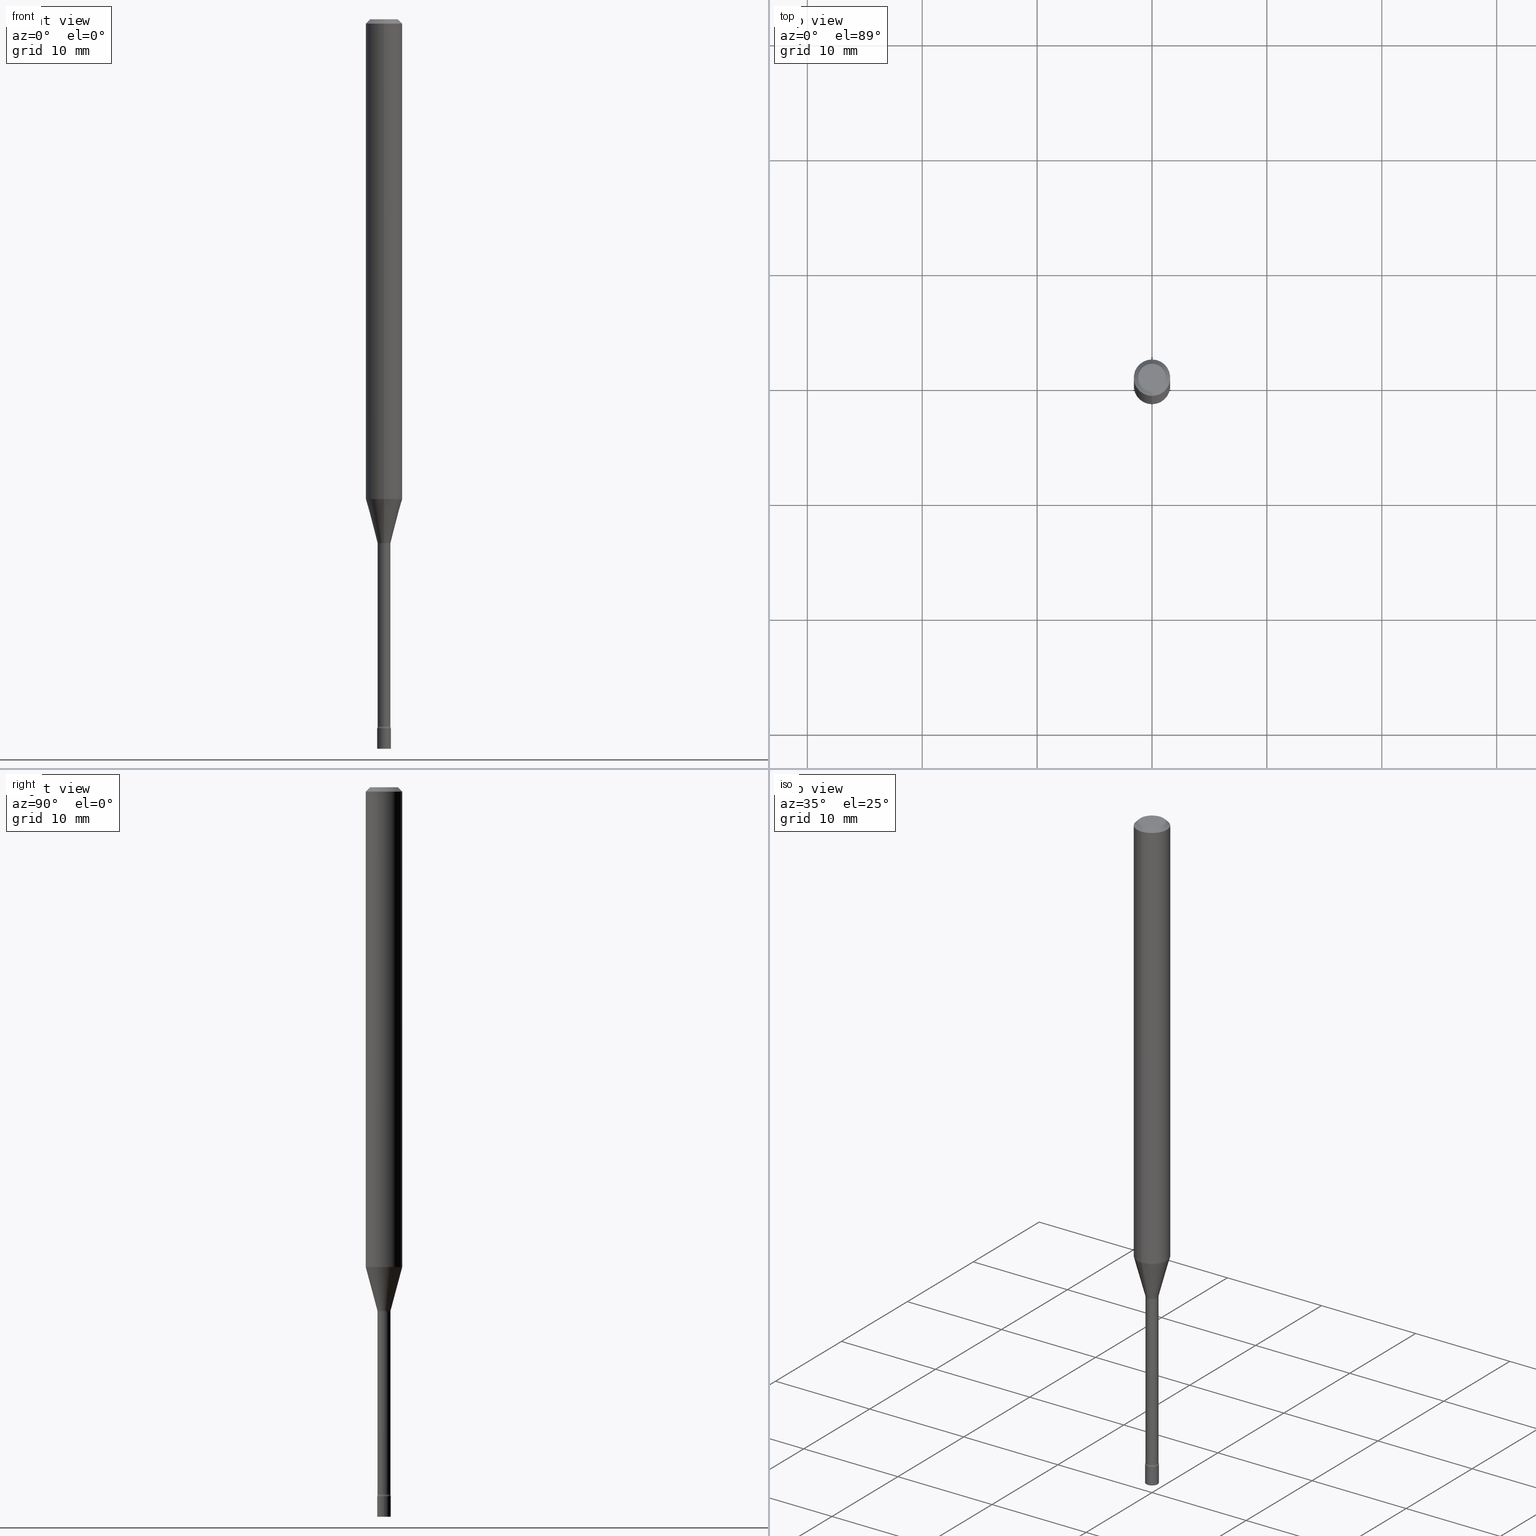
[diagram: canonical four-view strip — front | top / right | iso, engineering-drawing reading convention]
A machine part, canonical four-view strip (front | top / right | iso — engineering-drawing reading convention). The complete STEP part file that produces these views, byte-faithful:
ISO-10303-21;
HEADER;
FILE_DESCRIPTION (( 'STEP AP203' ),
    '1' );
FILE_NAME ('03625.STEP',
    '2024-03-08T22:11:30',
    ( '' ),
    ( '' ),
    'SwSTEP 2.0',
    'SolidWorks 2023',
    '' );
FILE_SCHEMA (( 'CONFIG_CONTROL_DESIGN' ));
ENDSEC;

DATA;
#1 = LINE ( 'NONE', #147, #111 ) ;
#2 = PERSON ( 'UNSPECIFIED', 'UNSPECIFIED', 'UNSPECIFIED', ('UNSPECIFIED'), ('UNSPECIFIED'), ('UNSPECIFIED') ) ;
#3 = EDGE_CURVE ( 'NONE', #136, #480, #63, .T. ) ;
#4 = CIRCLE ( 'NONE', #86, 0.06250000000000000000 ) ;
#5 = DATE_AND_TIME ( #356, #97 ) ;
#6 = EDGE_CURVE ( 'NONE', #100, #479, #79, .T. ) ;
#7 = CARTESIAN_POINT ( 'NONE',  ( 4.384932830333767000E-29, -6.260576145416959100E-15, -1.793092501787273196 ) ) ;
#8 = DATE_TIME_ROLE ( 'classification_date' ) ;
#9 = LOCAL_TIME ( 17, 11, 30.00000000000000000, #255 ) ;
#10 = ORIENTED_EDGE ( 'NONE', *, *, #73, .T. ) ;
#11 = DIRECTION ( 'NONE',  ( -2.445468806185136597E-29, 3.491481338843145583E-15, 1.000000000000000000 ) ) ;
#12 = EDGE_LOOP ( 'NONE', ( #113, #280, #103, #238 ) ) ;
#13 = CC_DESIGN_APPROVAL ( #270, ( #475 ) ) ;
#14 = DIRECTION ( 'NONE',  ( -2.445458238190760089E-29, 3.491496472812585621E-15, 1.000000000000000000 ) ) ;
#15 = DIRECTION ( 'NONE',  ( -6.982962677686265922E-15, -1.000000000000000000, 3.491496472812585621E-15 ) ) ;
#16 = EDGE_LOOP ( 'NONE', ( #123, #315, #207, #518 ) ) ;
#17 = DIRECTION ( 'NONE',  ( 1.000000000000000000, -7.105427357601001070E-15, 4.926315693879754937E-29 ) ) ;
#18 = CARTESIAN_POINT ( 'NONE',  ( 0.02350000000000000352, -1.640996229256272766E-16, 1.145901542312045115E-30 ) ) ;
#19 = DATE_AND_TIME ( #409, #200 ) ;
#20 = LINE ( 'NONE', #263, #37 ) ;
#21 = DIRECTION ( 'NONE',  ( 1.000000000000000000, -6.982962677686228056E-15, 0.000000000000000000 ) ) ;
#22 = CARTESIAN_POINT ( 'NONE',  ( 4.384932830333767000E-29, -6.260576145416959100E-15, -1.793092501787273196 ) ) ;
#23 = CLOSED_SHELL ( 'NONE', ( #78, #516, #117, #323, #391, #298, #499, #442, #358, #392, #39, #271, #351, #124 ) ) ;
#24 = CIRCLE ( 'NONE', #233, 0.02350000000000000352 ) ;
#25 = DIRECTION ( 'NONE',  ( -2.445458238190760089E-29, 3.491496472812585621E-15, 1.000000000000000000 ) ) ;
#26 = DIRECTION ( 'NONE',  ( -2.445458238190760089E-29, 3.491496472812585621E-15, 1.000000000000000000 ) ) ;
#27 = ORIENTED_EDGE ( 'NONE', *, *, #339, .F. ) ;
#28 = DIRECTION ( 'NONE',  ( -2.445468806185136877E-29, 3.491481338843145188E-15, 1.000000000000000000 ) ) ;
#29 = DIRECTION ( 'NONE',  ( -2.445458238190760089E-29, 3.491496472812585621E-15, 1.000000000000000000 ) ) ;
#30 = CARTESIAN_POINT ( 'NONE',  ( 4.384932830333767000E-29, -6.260576145416959100E-15, -1.793092501787273196 ) ) ;
#31 = VECTOR ( 'NONE', #28, 39.37007874015748143 ) ;
#32 = EDGE_CURVE ( 'NONE', #443, #470, #74, .T. ) ;
#33 = CONICAL_SURFACE ( 'NONE', #284, 0.06250000000000000000, 0.7853981633974483900 ) ;
#34 = ORIENTED_EDGE ( 'NONE', *, *, #339, .T. ) ;
#35 = CARTESIAN_POINT ( 'NONE',  ( 1.640996229256884133E-16, 0.02349999999999127440, -2.500000000000000000 ) ) ;
#36 = SECURITY_CLASSIFICATION_LEVEL ( 'unclassified' ) ;
#37 = VECTOR ( 'NONE', #519, 39.37007874015748143 ) ;
#38 = VERTEX_POINT ( 'NONE', #120 ) ;
#39 = ADVANCED_FACE ( 'NONE', ( #399 ), #450, .F. ) ;
#40 = ORIENTED_EDGE ( 'NONE', *, *, #192, .F. ) ;
#41 = CC_DESIGN_SECURITY_CLASSIFICATION ( #475, ( #350 ) ) ;
#42 = VERTEX_POINT ( 'NONE', #304 ) ;
#43 = DIRECTION ( 'NONE',  ( -6.982962677686265922E-15, -1.000000000000000000, 3.491496472812585621E-15 ) ) ;
#44 = ORIENTED_EDGE ( 'NONE', *, *, #354, .T. ) ;
#45 = FACE_OUTER_BOUND ( 'NONE', #393, .T. ) ;
#46 = ORIENTED_EDGE ( 'NONE', *, *, #487, .T. ) ;
#47 = EDGE_CURVE ( 'NONE', #119, #121, #363, .T. ) ;
#48 = CARTESIAN_POINT ( 'NONE',  ( 3.316907271900976096E-16, 0.04749999999999999362, -1.803026784907580972E-16 ) ) ;
#49 = CARTESIAN_POINT ( 'NONE',  ( -2.590679153421165676E-16, -0.03710000000000628073, -1.796974787463811118 ) ) ;
#50 = TOROIDAL_SURFACE ( 'NONE', #310, 0.03710000000000000797, 0.01500000000000002720 ) ;
#51 = CARTESIAN_POINT ( 'NONE',  ( 4.384932830333767000E-29, -6.260576145416959100E-15, -1.793092501787273196 ) ) ;
#52 = DIRECTION ( 'NONE',  ( 6.982962677686265922E-15, 1.000000000000000000, -3.491496472812585621E-15 ) ) ;
#53 = CARTESIAN_POINT ( 'NONE',  ( -0.02350000000000000352, 1.669775429036235687E-16, -1.155949746209903035E-30 ) ) ;
#54 = ORIENTED_EDGE ( 'NONE', *, *, #487, .F. ) ;
#55 = APPROVAL_ROLE ( '' ) ;
#56 = CARTESIAN_POINT ( 'NONE',  ( 1.570299446029824235E-16, 0.02210000000000004322, -7.716207204915829102E-17 ) ) ;
#57 = DIRECTION ( 'NONE',  ( -6.982962677686265922E-15, -1.000000000000000000, 0.000000000000000000 ) ) ;
#58 = ORIENTED_EDGE ( 'NONE', *, *, #6, .T. ) ;
#59 = DIRECTION ( 'NONE',  ( -2.445468806185136597E-29, 3.491481338843145583E-15, 1.000000000000000000 ) ) ;
#60 = CARTESIAN_POINT ( 'NONE',  ( -1.543234751768667826E-16, -0.02210000000000004322, 7.716207204915829102E-17 ) ) ;
#61 = ORIENTED_EDGE ( 'NONE', *, *, #366, .T. ) ;
#62 = FACE_OUTER_BOUND ( 'NONE', #129, .T. ) ;
#63 = CIRCLE ( 'NONE', #431, 0.04749999999999999362 ) ;
#64 = CARTESIAN_POINT ( 'NONE',  ( -1.543234751768078153E-16, -0.02210000000000854337, -2.422672283192177645 ) ) ;
#65 =( GEOMETRIC_REPRESENTATION_CONTEXT ( 3 ) GLOBAL_UNCERTAINTY_ASSIGNED_CONTEXT ( ( #365 ) ) GLOBAL_UNIT_ASSIGNED_CONTEXT ( ( #164, #456, #328 ) ) REPRESENTATION_CONTEXT ( 'NONE', 'WORKASPACE' ) );
#66 = APPROVAL_PERSON_ORGANIZATION ( #260, #314, #301 ) ;
#67 = DIRECTION ( 'NONE',  ( -2.445458238190760089E-29, 3.491496472812585621E-15, 1.000000000000000000 ) ) ;
#68 = ORIENTED_EDGE ( 'NONE', *, *, #354, .F. ) ;
#69 = PRODUCT_DEFINITION ( 'UNKNOWN', '', #350, #389 ) ;
#70 = DIRECTION ( 'NONE',  ( -6.982962677686265922E-15, -1.000000000000000000, 0.000000000000000000 ) ) ;
#71 = CARTESIAN_POINT ( 'NONE',  ( 5.924569496155794395E-29, -8.458715066898005273E-15, -2.422672283192177645 ) ) ;
#72 = ORIENTED_EDGE ( 'NONE', *, *, #377, .T. ) ;
#73 = EDGE_CURVE ( 'NONE', #305, #38, #425, .T. ) ;
#74 = CIRCLE ( 'NONE', #501, 0.02261111260566398690 ) ;
#75 = AXIS2_PLACEMENT_3D ( 'NONE', #49, #407, #417 ) ;
#76 = EDGE_CURVE ( 'NONE', #470, #443, #394, .T. ) ;
#77 = PERSON_AND_ORGANIZATION_ROLE ( 'design_supplier' ) ;
#78 = ADVANCED_FACE ( 'NONE', ( #506 ), #446, .F. ) ;
#79 = CIRCLE ( 'NONE', #110, 0.06250000000000000000 ) ;
#80 = COORDINATED_UNIVERSAL_TIME_OFFSET ( 5, 0, .BEHIND. ) ;
#81 = VERTEX_POINT ( 'NONE', #184 ) ;
#82 = CYLINDRICAL_SURFACE ( 'NONE', #162, 0.02210000000000004322 ) ;
#83 = ORIENTED_EDGE ( 'NONE', *, *, #462, .T. ) ;
#84 = EDGE_CURVE ( 'NONE', #480, #136, #176, .T. ) ;
#85 = EDGE_CURVE ( 'NONE', #119, #321, #439, .T. ) ;
#86 = AXIS2_PLACEMENT_3D ( 'NONE', #330, #295, #319 ) ;
#87 = LOCAL_TIME ( 17, 11, 30.00000000000000000, #104 ) ;
#88 = FACE_OUTER_BOUND ( 'NONE', #12, .T. ) ;
#89 = ORIENTED_EDGE ( 'NONE', *, *, #223, .F. ) ;
#90 = CARTESIAN_POINT ( 'NONE',  ( 0.000000000000000000, 0.000000000000000000, 0.000000000000000000 ) ) ;
#91 = ORIENTED_EDGE ( 'NONE', *, *, #481, .F. ) ;
#92 =( LENGTH_UNIT ( ) NAMED_UNIT ( * ) SI_UNIT ( $, .METRE. ) );
#93 = CARTESIAN_POINT ( 'NONE',  ( 5.940043730223697314E-29, -8.480808172050001970E-15, -2.429000000000000270 ) ) ;
#94 = CARTESIAN_POINT ( 'NONE',  ( 4.394445788243915811E-29, -6.274103936801524027E-15, -1.796974787463811118 ) ) ;
#95 = ORIENTED_EDGE ( 'NONE', *, *, #154, .F. ) ;
#96 = AXIS2_PLACEMENT_3D ( 'NONE', #183, #140, #303 ) ;
#97 = LOCAL_TIME ( 17, 11, 30.00000000000000000, #190 ) ;
#98 = DIRECTION ( 'NONE',  ( -6.982962677686265922E-15, -1.000000000000000000, 3.491496472812585621E-15 ) ) ;
#99 = DIRECTION ( 'NONE',  ( -6.982962677686266711E-15, -1.000000000000000000, 3.491496472812586015E-15 ) ) ;
#100 = VERTEX_POINT ( 'NONE', #291 ) ;
#101 = DIRECTION ( 'NONE',  ( -2.445468806185136597E-29, 3.491481338843145583E-15, 1.000000000000000000 ) ) ;
#102 = LINE ( 'NONE', #60, #410 ) ;
#103 = ORIENTED_EDGE ( 'NONE', *, *, #317, .T. ) ;
#104 = COORDINATED_UNIVERSAL_TIME_OFFSET ( 5, 0, .BEHIND. ) ;
#105 = DIRECTION ( 'NONE',  ( -2.445468806185136877E-29, 3.491481338843145188E-15, 1.000000000000000000 ) ) ;
#106 = AXIS2_PLACEMENT_3D ( 'NONE', #469, #300, #209 ) ;
#107 = AXIS2_PLACEMENT_3D ( 'NONE', #406, #165, #173 ) ;
#108 = FACE_OUTER_BOUND ( 'NONE', #369, .T. ) ;
#109 = ADVANCED_BREP_SHAPE_REPRESENTATION ( '03625', ( #195, #201, #411 ), #65 ) ;
#110 = AXIS2_PLACEMENT_3D ( 'NONE', #287, #320, #362 ) ;
#111 = VECTOR ( 'NONE', #272, 39.37007874015747433 ) ;
#112 = PRODUCT ( '03625', '03625', '', ( #471 ) ) ;
#113 = ORIENTED_EDGE ( 'NONE', *, *, #160, .F. ) ;
#114 = EDGE_LOOP ( 'NONE', ( #40, #72, #230, #197 ) ) ;
#115 = ORIENTED_EDGE ( 'NONE', *, *, #402, .F. ) ;
#116 = AXIS2_PLACEMENT_3D ( 'NONE', #423, #67, #229 ) ;
#117 = ADVANCED_FACE ( 'NONE', ( #495 ), #477, .F. ) ;
#118 = PERSON_AND_ORGANIZATION ( #2, #397 ) ;
#119 = VERTEX_POINT ( 'NONE', #166 ) ;
#120 = CARTESIAN_POINT ( 'NONE',  ( -0.02350000000000000352, -8.437778216675308581E-15, -2.500000000000000000 ) ) ;
#121 = VERTEX_POINT ( 'NONE', #381 ) ;
#122 = CC_DESIGN_PERSON_AND_ORGANIZATION_ASSIGNMENT ( #435, #77, ( #350 ) ) ;
#123 = ORIENTED_EDGE ( 'NONE', *, *, #398, .F. ) ;
#124 = ADVANCED_FACE ( 'NONE', ( #259 ), #50, .F. ) ;
#125 = AXIS2_PLACEMENT_3D ( 'NONE', #279, #241, #43 ) ;
#126 = CYLINDRICAL_SURFACE ( 'NONE', #472, 0.02350000000000000352 ) ;
#127 = CIRCLE ( 'NONE', #75, 0.01500000000000002373 ) ;
#128 = DIRECTION ( 'NONE',  ( -6.982962677686265922E-15, -1.000000000000000000, 3.491496472812585621E-15 ) ) ;
#129 = EDGE_LOOP ( 'NONE', ( #157, #44, #355, #177 ) ) ;
#130 = APPROVAL_STATUS ( 'not_yet_approved' ) ;
#131 = DIRECTION ( 'NONE',  ( -2.445458238190760089E-29, 3.491496472812585621E-15, 1.000000000000000000 ) ) ;
#132 = PERSON_AND_ORGANIZATION_ROLE ( 'creator' ) ;
#133 = CARTESIAN_POINT ( 'NONE',  ( -1.578925554262692203E-16, -0.02261111260567024925, -1.793092501787273196 ) ) ;
#134 = DIRECTION ( 'NONE',  ( -2.445458238190760089E-29, 3.491496472812585621E-15, 1.000000000000000000 ) ) ;
#135 = AXIS2_PLACEMENT_3D ( 'NONE', #296, #187, #345 ) ;
#136 = VERTEX_POINT ( 'NONE', #455 ) ;
#137 = CC_DESIGN_APPROVAL ( #314, ( #350 ) ) ;
#138 = CARTESIAN_POINT ( 'NONE',  ( 2.636113549670569325E-16, 0.03709999999999161885, -2.422672283192177645 ) ) ;
#139 = PERSON_AND_ORGANIZATION ( #2, #397 ) ;
#140 = DIRECTION ( 'NONE',  ( -2.445458238190760089E-29, 3.491496472812585621E-15, 1.000000000000000000 ) ) ;
#141 = DIRECTION ( 'NONE',  ( 1.000000000000000000, -7.105427357601001070E-15, 4.926315693879754937E-29 ) ) ;
#142 = DIRECTION ( 'NONE',  ( -2.445468806185136597E-29, 3.491481338843145583E-15, 1.000000000000000000 ) ) ;
#143 = EDGE_LOOP ( 'NONE', ( #484, #297, #58, #318 ) ) ;
#144 = AXIS2_PLACEMENT_3D ( 'NONE', #498, #375, #15 ) ;
#145 = CIRCLE ( 'NONE', #153, 0.01500000000000000291 ) ;
#146 = EDGE_CURVE ( 'NONE', #479, #100, #222, .T. ) ;
#147 = CARTESIAN_POINT ( 'NONE',  ( 1.606616180941255974E-16, 0.02261111260565772454, -1.793092501787273196 ) ) ;
#148 = CC_DESIGN_DATE_AND_TIME_ASSIGNMENT ( #5, #8, ( #475 ) ) ;
#149 = EDGE_CURVE ( 'NONE', #321, #461, #102, .T. ) ;
#150 = AXIS2_PLACEMENT_3D ( 'NONE', #215, #134, #99 ) ;
#151 = AXIS2_PLACEMENT_3D ( 'NONE', #93, #252, #412 ) ;
#152 = AXIS2_PLACEMENT_3D ( 'NONE', #302, #502, #257 ) ;
#153 = AXIS2_PLACEMENT_3D ( 'NONE', #219, #378, #174 ) ;
#154 = EDGE_CURVE ( 'NONE', #305, #492, #474, .T. ) ;
#155 = DIRECTION ( 'NONE',  ( -6.982962677686265922E-15, -1.000000000000000000, 0.000000000000000000 ) ) ;
#156 = ORIENTED_EDGE ( 'NONE', *, *, #73, .F. ) ;
#157 = ORIENTED_EDGE ( 'NONE', *, *, #329, .T. ) ;
#158 = DIRECTION ( 'NONE',  ( -2.445458238190760089E-29, 3.491496472812585621E-15, 1.000000000000000000 ) ) ;
#159 = EDGE_LOOP ( 'NONE', ( #27, #242, #508, #316 ) ) ;
#160 = EDGE_CURVE ( 'NONE', #136, #100, #264, .T. ) ;
#161 = DIRECTION ( 'NONE',  ( -2.445458238190760089E-29, 3.491496472812585621E-15, 1.000000000000000000 ) ) ;
#162 = AXIS2_PLACEMENT_3D ( 'NONE', #437, #161, #98 ) ;
#163 = ORIENTED_EDGE ( 'NONE', *, *, #256, .F. ) ;
#164 =( CONVERSION_BASED_UNIT ( 'INCH', #227 ) LENGTH_UNIT ( ) NAMED_UNIT ( #213 ) );
#165 = DIRECTION ( 'NONE',  ( 2.445458238190760089E-29, -3.491496472812585621E-15, -1.000000000000000000 ) ) ;
#166 = CARTESIAN_POINT ( 'NONE',  ( 1.620037437533624565E-16, 0.02209999999999162287, -2.422672283192177645 ) ) ;
#167 = ORIENTED_EDGE ( 'NONE', *, *, #85, .T. ) ;
#168 = PERSON_AND_ORGANIZATION_ROLE ( 'design_owner' ) ;
#169 = DIRECTION ( 'NONE',  ( -2.445468806185136597E-29, 3.491481338843145583E-15, 1.000000000000000000 ) ) ;
#170 = DIRECTION ( 'NONE',  ( -6.982962677686265922E-15, -1.000000000000000000, 0.000000000000000000 ) ) ;
#171 = ORIENTED_EDGE ( 'NONE', *, *, #32, .F. ) ;
#172 = CYLINDRICAL_SURFACE ( 'NONE', #236, 0.02210000000000004322 ) ;
#173 = DIRECTION ( 'NONE',  ( 6.982962677686265922E-15, 1.000000000000000000, -3.483106191921935554E-15 ) ) ;
#174 = DIRECTION ( 'NONE',  ( -6.982962677686264344E-15, -1.000000000000000000, 0.000000000000000000 ) ) ;
#175 = EDGE_CURVE ( 'NONE', #403, #288, #483, .T. ) ;
#176 = CIRCLE ( 'NONE', #150, 0.04749999999999999362 ) ;
#177 = ORIENTED_EDGE ( 'NONE', *, *, #149, .F. ) ;
#178 = CONICAL_SURFACE ( 'NONE', #107, 0.06250000000000000000, 0.7853981633974483900 ) ;
#179 = ORIENTED_EDGE ( 'NONE', *, *, #256, .T. ) ;
#180 = APPROVAL_PERSON_ORGANIZATION ( #467, #476, #55 ) ;
#181 = CALENDAR_DATE ( 2024, 8, 3 ) ;
#182 = DIRECTION ( 'NONE',  ( -2.445458238190760089E-29, 3.491496472812585621E-15, 1.000000000000000000 ) ) ;
#183 = CARTESIAN_POINT ( 'NONE',  ( 5.940018060565357254E-29, -8.480844932461771277E-15, -2.429000000000000270 ) ) ;
#184 = CARTESIAN_POINT ( 'NONE',  ( 1.570299446030416374E-16, 0.02209999999999372536, -1.796974787463811118 ) ) ;
#185 = CARTESIAN_POINT ( 'NONE',  ( 0.000000000000000000, 0.000000000000000000, 0.000000000000000000 ) ) ;
#186 = FACE_OUTER_BOUND ( 'NONE', #278, .T. ) ;
#187 = DIRECTION ( 'NONE',  ( -2.445458238190760089E-29, 3.491496472812585621E-15, 1.000000000000000000 ) ) ;
#188 = DIRECTION ( 'NONE',  ( -6.982962677686265922E-15, -1.000000000000000000, 0.000000000000000000 ) ) ;
#189 = ORIENTED_EDGE ( 'NONE', *, *, #146, .F. ) ;
#190 = COORDINATED_UNIVERSAL_TIME_OFFSET ( 5, 0, .BEHIND. ) ;
#191 = PLANE ( 'NONE',  #357 ) ;
#192 = EDGE_CURVE ( 'NONE', #38, #42, #248, .T. ) ;
#193 = VECTOR ( 'NONE', #253, 39.37007874015748143 ) ;
#194 = CARTESIAN_POINT ( 'NONE',  ( 0.02350000000000000352, -8.892802970033491011E-15, -2.500000000000000000 ) ) ;
#195 = MANIFOLD_SOLID_BREP ( 'Body-Move/Copy2[1]', #293 ) ;
#196 = PERSON_AND_ORGANIZATION ( #2, #397 ) ;
#197 = ORIENTED_EDGE ( 'NONE', *, *, #473, .F. ) ;
#198 = PERSON_AND_ORGANIZATION_ROLE ( 'classification_officer' ) ;
#199 = VECTOR ( 'NONE', #105, 39.37007874015748143 ) ;
#200 = LOCAL_TIME ( 17, 11, 30.00000000000000000, #250 ) ;
#201 = MANIFOLD_SOLID_BREP ( 'Body-Move/Copy2[2]', #23 ) ;
#202 = PRODUCT_RELATED_PRODUCT_CATEGORY ( 'detail', '', ( #112 ) ) ;
#203 = CIRCLE ( 'NONE', #152, 0.02350000000000000352 ) ;
#204 = CARTESIAN_POINT ( 'NONE',  ( 7.070600372608454319E-46, -1.009503081103282544E-31, -2.891319206432061093E-17 ) ) ;
#205 = EDGE_CURVE ( 'NONE', #461, #81, #364, .T. ) ;
#206 = CYLINDRICAL_SURFACE ( 'NONE', #379, 0.06250000000000000000 ) ;
#207 = ORIENTED_EDGE ( 'NONE', *, *, #223, .T. ) ;
#208 = CARTESIAN_POINT ( 'NONE',  ( 2.636113549670411553E-16, 0.03709999999999373521, -1.796974787463811118 ) ) ;
#209 = DIRECTION ( 'NONE',  ( -6.982962677686265922E-15, -1.000000000000000000, 3.491496472812585621E-15 ) ) ;
#210 = TOROIDAL_SURFACE ( 'NONE', #335, 0.03710000000000007736, 0.01499999999999999771 ) ;
#211 = VERTEX_POINT ( 'NONE', #517 ) ;
#212 = DIRECTION ( 'NONE',  ( -2.445458238190760089E-29, 3.491496472812585621E-15, 1.000000000000000000 ) ) ;
#213 = DIMENSIONAL_EXPONENTS ( 1.000000000000000000, 0.000000000000000000, 0.000000000000000000, 0.000000000000000000, 0.000000000000000000, 0.000000000000000000, 0.000000000000000000 ) ;
#214 = LINE ( 'NONE', #133, #396 ) ;
#215 = CARTESIAN_POINT ( 'NONE',  ( 7.070600372608454319E-46, -1.009503081103282544E-31, -2.891319206432061093E-17 ) ) ;
#216 = CARTESIAN_POINT ( 'NONE',  ( 0.000000000000000000, 0.000000000000000000, 0.000000000000000000 ) ) ;
#217 = DIRECTION ( 'NONE',  ( 1.000000000000000000, -6.982962677686265922E-15, 4.876176775795935793E-29 ) ) ;
#218 = DIRECTION ( 'NONE',  ( 1.000000000000000000, -6.982962677686269866E-15, 0.000000000000000000 ) ) ;
#219 = CARTESIAN_POINT ( 'NONE',  ( -2.590679153421017765E-16, -0.03710000000000854281, -2.422672283192177645 ) ) ;
#220 = EDGE_LOOP ( 'NONE', ( #346, #282, #179, #283 ) ) ;
#221 = DIRECTION ( 'NONE',  ( 1.000000000000000000, -6.982962677686265922E-15, 4.876176775795935793E-29 ) ) ;
#222 = CIRCLE ( 'NONE', #116, 0.06250000000000000000 ) ;
#223 = EDGE_CURVE ( 'NONE', #470, #461, #127, .T. ) ;
#224 = AXIS2_PLACEMENT_3D ( 'NONE', #48, #376, #52 ) ;
#225 = ORIENTED_EDGE ( 'NONE', *, *, #421, .T. ) ;
#226 = LOCAL_TIME ( 17, 11, 30.00000000000000000, #80 ) ;
#227 = LENGTH_MEASURE_WITH_UNIT ( LENGTH_MEASURE( 0.02539999999999999897 ), #92 );
#228 = FACE_OUTER_BOUND ( 'NONE', #143, .T. ) ;
#229 = DIRECTION ( 'NONE',  ( -6.982962677686265922E-15, -1.000000000000000000, 3.483106191921935554E-15 ) ) ;
#230 = ORIENTED_EDGE ( 'NONE', *, *, #154, .T. ) ;
#231 = APPLICATION_PROTOCOL_DEFINITION ( 'international standard', 'config_control_design', 1994, #466 ) ;
#232 = DIRECTION ( 'NONE',  ( -6.982962677686265922E-15, -1.000000000000000000, 3.491496472812585621E-15 ) ) ;
#233 = AXIS2_PLACEMENT_3D ( 'NONE', #368, #59, #218 ) ;
#234 = DIRECTION ( 'NONE',  ( -1.000000000000000000, 6.982962677686265922E-15, -4.876176775795935793E-29 ) ) ;
#235 = PERSON_AND_ORGANIZATION ( #2, #397 ) ;
#236 = AXIS2_PLACEMENT_3D ( 'NONE', #185, #424, #292 ) ;
#237 = CC_DESIGN_APPROVAL ( #476, ( #69 ) ) ;
#238 = ORIENTED_EDGE ( 'NONE', *, *, #146, .T. ) ;
#239 = ORIENTED_EDGE ( 'NONE', *, *, #462, .F. ) ;
#240 = CC_DESIGN_PERSON_AND_ORGANIZATION_ASSIGNMENT ( #196, #309, ( #350 ) ) ;
#241 = DIRECTION ( 'NONE',  ( -2.445458238190759809E-29, 3.491496472812585621E-15, 1.000000000000000000 ) ) ;
#242 = ORIENTED_EDGE ( 'NONE', *, *, #32, .T. ) ;
#243 = CIRCLE ( 'NONE', #349, 0.02350000000000000352 ) ;
#244 = EDGE_LOOP ( 'NONE', ( #171, #452, #83, #89 ) ) ;
#245 = CYLINDRICAL_SURFACE ( 'NONE', #440, 0.02350000000000000352 ) ;
#246 = EDGE_LOOP ( 'NONE', ( #10, #385, #115, #95 ) ) ;
#247 = DIRECTION ( 'NONE',  ( -2.445458238190760089E-29, 3.491496472812585621E-15, 1.000000000000000000 ) ) ;
#248 = LINE ( 'NONE', #53, #31 ) ;
#249 = EDGE_LOOP ( 'NONE', ( #313, #372 ) ) ;
#250 = COORDINATED_UNIVERSAL_TIME_OFFSET ( 5, 0, .BEHIND. ) ;
#251 = AXIS2_PLACEMENT_3D ( 'NONE', #413, #383, #307 ) ;
#252 = DIRECTION ( 'NONE',  ( -2.445468806185136597E-29, 3.491481338843145583E-15, 1.000000000000000000 ) ) ;
#253 = DIRECTION ( 'NONE',  ( -4.851104656540964275E-15, -0.7071067811865500152, -0.7071067811865450192 ) ) ;
#254 = CIRCLE ( 'NONE', #324, 0.02210000000000008138 ) ;
#255 = COORDINATED_UNIVERSAL_TIME_OFFSET ( 5, 0, .BEHIND. ) ;
#256 = EDGE_CURVE ( 'NONE', #321, #211, #145, .T. ) ;
#257 = DIRECTION ( 'NONE',  ( -6.982962677686265922E-15, -1.000000000000000000, 0.000000000000000000 ) ) ;
#258 = CARTESIAN_POINT ( 'NONE',  ( -1.578925554262692203E-16, -0.02261111260567024925, -1.793092501787273196 ) ) ;
#259 = FACE_OUTER_BOUND ( 'NONE', #16, .T. ) ;
#260 = PERSON_AND_ORGANIZATION ( #2, #397 ) ;
#261 = DIRECTION ( 'NONE',  ( 7.105427357601001859E-15, 1.000000000000000000, 0.000000000000000000 ) ) ;
#262 = DIRECTION ( 'NONE',  ( 1.000000000000000000, -6.982962677686228056E-15, 0.000000000000000000 ) ) ;
#263 = CARTESIAN_POINT ( 'NONE',  ( 4.364351673553919652E-16, 0.06249999999999995143, -0.01500000000000024751 ) ) ;
#264 = LINE ( 'NONE', #371, #193 ) ;
#265 = AXIS2_PLACEMENT_3D ( 'NONE', #427, #460, #57 ) ;
#266 = CIRCLE ( 'NONE', #151, 0.02350000000000000352 ) ;
#267 = ORIENTED_EDGE ( 'NONE', *, *, #377, .F. ) ;
#268 = DIRECTION ( 'NONE',  ( 0.000000000000000000, 0.000000000000000000, 1.000000000000000000 ) ) ;
#269 = FACE_OUTER_BOUND ( 'NONE', #220, .T. ) ;
#270 = APPROVAL ( #277, 'UNSPECIFIED' ) ;
#271 = ADVANCED_FACE ( 'NONE', ( #269 ), #210, .F. ) ;
#272 = DIRECTION ( 'NONE',  ( 1.839019923739599526E-15, 0.2588190451025248473, 0.9659258262890673130 ) ) ;
#273 = AXIS2_PLACEMENT_3D ( 'NONE', #337, #142, #262 ) ;
#274 = AXIS2_PLACEMENT_3D ( 'NONE', #35, #434, #234 ) ;
#275 = ADVANCED_FACE ( 'NONE', ( #108 ), #191, .T. ) ;
#276 = DIRECTION ( 'NONE',  ( -6.982962677686266711E-15, -1.000000000000000000, 3.491496472812586015E-15 ) ) ;
#277 = APPROVAL_STATUS ( 'not_yet_approved' ) ;
#278 = EDGE_LOOP ( 'NONE', ( #338, #34, #445, #491 ) ) ;
#279 = CARTESIAN_POINT ( 'NONE',  ( 1.640996229256866630E-16, 0.02349999999999152073, -2.429000000000000270 ) ) ;
#280 = ORIENTED_EDGE ( 'NONE', *, *, #84, .F. ) ;
#281 = DIRECTION ( 'NONE',  ( -2.445458238190760089E-29, 3.491496472812585621E-15, 1.000000000000000000 ) ) ;
#282 = ORIENTED_EDGE ( 'NONE', *, *, #329, .F. ) ;
#283 = ORIENTED_EDGE ( 'NONE', *, *, #312, .T. ) ;
#284 = AXIS2_PLACEMENT_3D ( 'NONE', #515, #509, #404 ) ;
#285 = FACE_OUTER_BOUND ( 'NONE', #249, .T. ) ;
#286 = CARTESIAN_POINT ( 'NONE',  ( -1.543234751768225325E-16, -0.02210000000000627435, -1.796974787463811118 ) ) ;
#287 = CARTESIAN_POINT ( 'NONE',  ( 3.668187357286147315E-31, -5.237244709218889278E-17, -0.01500000000000003067 ) ) ;
#288 = VERTEX_POINT ( 'NONE', #420 ) ;
#289 = PERSON_AND_ORGANIZATION ( #2, #397 ) ;
#290 = DIRECTION ( 'NONE',  ( -6.982962677686265922E-15, -1.000000000000000000, 0.000000000000000000 ) ) ;
#291 = CARTESIAN_POINT ( 'NONE',  ( -4.364351673553912750E-16, -0.06250000000000005551, -0.01499999999999981209 ) ) ;
#292 = DIRECTION ( 'NONE',  ( -6.982962677686265922E-15, -1.000000000000000000, 3.491496472812585621E-15 ) ) ;
#293 = CLOSED_SHELL ( 'NONE', ( #415, #275, #430, #348 ) ) ;
#294 = CIRCLE ( 'NONE', #489, 0.02210000000000000159 ) ;
#295 = DIRECTION ( 'NONE',  ( -2.445458238190760089E-29, 3.491496472812585621E-15, 1.000000000000000000 ) ) ;
#296 = CARTESIAN_POINT ( 'NONE',  ( 4.394426797824467724E-29, -6.274131132163043039E-15, -1.796974787463811118 ) ) ;
#297 = ORIENTED_EDGE ( 'NONE', *, *, #160, .T. ) ;
#298 = ADVANCED_FACE ( 'NONE', ( #186 ), #458, .T. ) ;
#299 = DIRECTION ( 'NONE',  ( -2.445458238190760089E-29, 3.491496472812585621E-15, 1.000000000000000000 ) ) ;
#300 = DIRECTION ( 'NONE',  ( -2.445458238190760089E-29, 3.491496472812585621E-15, 1.000000000000000000 ) ) ;
#301 = APPROVAL_ROLE ( '' ) ;
#302 = CARTESIAN_POINT ( 'NONE',  ( 5.940018060565357254E-29, -8.480844932461771277E-15, -2.429000000000000270 ) ) ;
#303 = DIRECTION ( 'NONE',  ( -6.982962677686265922E-15, -1.000000000000000000, 0.000000000000000000 ) ) ;
#304 = CARTESIAN_POINT ( 'NONE',  ( -0.02350000000000000352, -8.437778216675308581E-15, -2.429000000000000270 ) ) ;
#305 = VERTEX_POINT ( 'NONE', #194 ) ;
#306 = FACE_OUTER_BOUND ( 'NONE', #159, .T. ) ;
#307 = DIRECTION ( 'NONE',  ( -6.982962677686265922E-15, -1.000000000000000000, 4.370956789862821150E-15 ) ) ;
#308 = AXIS2_PLACEMENT_3D ( 'NONE', #30, #182, #70 ) ;
#309 = PERSON_AND_ORGANIZATION_ROLE ( 'creator' ) ;
#310 = AXIS2_PLACEMENT_3D ( 'NONE', #94, #26, #464 ) ;
#311 = CIRCLE ( 'NONE', #426, 0.01500000000000002373 ) ;
#312 = EDGE_CURVE ( 'NONE', #211, #121, #203, .T. ) ;
#313 = ORIENTED_EDGE ( 'NONE', *, *, #84, .T. ) ;
#314 = APPROVAL ( #419, 'UNSPECIFIED' ) ;
#315 = ORIENTED_EDGE ( 'NONE', *, *, #76, .F. ) ;
#316 = ORIENTED_EDGE ( 'NONE', *, *, #175, .F. ) ;
#317 = EDGE_CURVE ( 'NONE', #480, #479, #20, .T. ) ;
#318 = ORIENTED_EDGE ( 'NONE', *, *, #317, .F. ) ;
#319 = DIRECTION ( 'NONE',  ( -6.982962677686265922E-15, -1.000000000000000000, 4.370956789862821150E-15 ) ) ;
#320 = DIRECTION ( 'NONE',  ( -2.445458238190760089E-29, 3.491496472812585621E-15, 1.000000000000000000 ) ) ;
#321 = VERTEX_POINT ( 'NONE', #64 ) ;
#322 = AXIS2_PLACEMENT_3D ( 'NONE', #138, #141, #513 ) ;
#323 = ADVANCED_FACE ( 'NONE', ( #228 ), #33, .T. ) ;
#324 = AXIS2_PLACEMENT_3D ( 'NONE', #353, #29, #188 ) ;
#325 = CARTESIAN_POINT ( 'NONE',  ( 4.440892098501025523E-16, 0.06249999999999423378, -1.644225147374218210 ) ) ;
#326 = ORIENTED_EDGE ( 'NONE', *, *, #402, .T. ) ;
#327 = ORIENTED_EDGE ( 'NONE', *, *, #473, .T. ) ;
#328 =( NAMED_UNIT ( * ) SI_UNIT ( $, .STERADIAN. ) SOLID_ANGLE_UNIT ( ) );
#329 = EDGE_CURVE ( 'NONE', #321, #119, #254, .T. ) ;
#330 = CARTESIAN_POINT ( 'NONE',  ( 4.020883932086697995E-29, -5.740806302566835225E-15, -1.644225147374217988 ) ) ;
#331 = LINE ( 'NONE', #380, #478 ) ;
#332 = DIRECTION ( 'NONE',  ( -2.445458238190760089E-29, 3.491496472812585621E-15, 1.000000000000000000 ) ) ;
#333 = CC_DESIGN_PERSON_AND_ORGANIZATION_ASSIGNMENT ( #139, #168, ( #112 ) ) ;
#334 = AXIS2_PLACEMENT_3D ( 'NONE', #22, #332, #170 ) ;
#335 = AXIS2_PLACEMENT_3D ( 'NONE', #71, #429, #232 ) ;
#336 = CYLINDRICAL_SURFACE ( 'NONE', #457, 0.06250000000000000000 ) ;
#337 = CARTESIAN_POINT ( 'NONE',  ( 6.113672015462842613E-29, -8.728703347107864943E-15, -2.500000000000000000 ) ) ;
#338 = ORIENTED_EDGE ( 'NONE', *, *, #76, .T. ) ;
#339 = EDGE_CURVE ( 'NONE', #443, #403, #1, .T. ) ;
#340 = DATE_AND_TIME ( #181, #87 ) ;
#341 = LINE ( 'NONE', #512, #448 ) ;
#342 = DIRECTION ( 'NONE',  ( -2.445458238190760089E-29, 3.491496472812585621E-15, 1.000000000000000000 ) ) ;
#343 = APPLICATION_PROTOCOL_DEFINITION ( 'international standard', 'config_control_design', 1994, #361 ) ;
#344 = CC_DESIGN_PERSON_AND_ORGANIZATION_ASSIGNMENT ( #289, #132, ( #69 ) ) ;
#345 = DIRECTION ( 'NONE',  ( -6.982962677686265922E-15, -1.000000000000000000, 0.000000000000000000 ) ) ;
#346 = ORIENTED_EDGE ( 'NONE', *, *, #47, .F. ) ;
#347 = DIRECTION ( 'NONE',  ( -2.438088387897960049E-29, 3.491481338843145188E-15, 1.000000000000000000 ) ) ;
#348 = ADVANCED_FACE ( 'NONE', ( #433 ), #390, .T. ) ;
#349 = AXIS2_PLACEMENT_3D ( 'NONE', #370, #101, #21 ) ;
#350 = PRODUCT_DEFINITION_FORMATION_WITH_SPECIFIED_SOURCE ( 'ANY', '', #112, .NOT_KNOWN. ) ;
#351 = ADVANCED_FACE ( 'NONE', ( #444 ), #82, .T. ) ;
#352 = CALENDAR_DATE ( 2024, 8, 3 ) ;
#353 = CARTESIAN_POINT ( 'NONE',  ( 5.924543893368729790E-29, -8.458751731546301603E-15, -2.422672283192177645 ) ) ;
#354 = EDGE_CURVE ( 'NONE', #119, #81, #497, .T. ) ;
#355 = ORIENTED_EDGE ( 'NONE', *, *, #205, .F. ) ;
#356 = CALENDAR_DATE ( 2024, 8, 3 ) ;
#357 = AXIS2_PLACEMENT_3D ( 'NONE', #386, #347, #217 ) ;
#358 = ADVANCED_FACE ( 'NONE', ( #88 ), #178, .T. ) ;
#359 = CC_DESIGN_DATE_AND_TIME_ASSIGNMENT ( #19, #500, ( #69 ) ) ;
#360 = SHAPE_DEFINITION_REPRESENTATION ( #482, #109 ) ;
#361 = APPLICATION_CONTEXT ( 'configuration controlled 3d designs of mechanical parts and assemblies' ) ;
#362 = DIRECTION ( 'NONE',  ( -6.982962677686265922E-15, -1.000000000000000000, 3.483106191921935554E-15 ) ) ;
#363 = CIRCLE ( 'NONE', #322, 0.01500000000000000291 ) ;
#364 = CIRCLE ( 'NONE', #135, 0.02210000000000000159 ) ;
#365 = UNCERTAINTY_MEASURE_WITH_UNIT (LENGTH_MEASURE( 1.000000000000000082E-05 ), #164, 'distance_accuracy_value', 'NONE');
#366 = EDGE_CURVE ( 'NONE', #403, #479, #331, .T. ) ;
#367 = EDGE_CURVE ( 'NONE', #470, #288, #214, .T. ) ;
#368 = CARTESIAN_POINT ( 'NONE',  ( 5.940043730223697314E-29, -8.480808172050001970E-15, -2.429000000000000270 ) ) ;
#369 = EDGE_LOOP ( 'NONE', ( #326, #327 ) ) ;
#370 = CARTESIAN_POINT ( 'NONE',  ( 6.113672015462842613E-29, -8.728703347107864943E-15, -2.500000000000000000 ) ) ;
#371 = CARTESIAN_POINT ( 'NONE',  ( -4.287811248607203282E-16, -0.06250000000000005551, -0.01499999999999981209 ) ) ;
#372 = ORIENTED_EDGE ( 'NONE', *, *, #3, .T. ) ;
#373 = DIRECTION ( 'NONE',  ( -6.982962677686265922E-15, -1.000000000000000000, 0.000000000000000000 ) ) ;
#374 = DIRECTION ( 'NONE',  ( -1.807323732225328562E-15, -0.2588190451025179639, 0.9659258262890689783 ) ) ;
#375 = DIRECTION ( 'NONE',  ( -2.445458238190760089E-29, 3.491496472812585621E-15, 1.000000000000000000 ) ) ;
#376 = DIRECTION ( 'NONE',  ( 2.445458238190759809E-29, -3.491496472812585621E-15, -1.000000000000000000 ) ) ;
#377 = EDGE_CURVE ( 'NONE', #38, #305, #243, .T. ) ;
#378 = DIRECTION ( 'NONE',  ( -1.000000000000000000, 6.982962677686265922E-15, -4.883557194083112340E-29 ) ) ;
#379 = AXIS2_PLACEMENT_3D ( 'NONE', #490, #14, #128 ) ;
#380 = CARTESIAN_POINT ( 'NONE',  ( 4.440892098500625669E-16, 0.06250000000000000000, -2.182185295507866013E-16 ) ) ;
#381 = CARTESIAN_POINT ( 'NONE',  ( 1.669775429036829552E-16, 0.02349999999999152420, -2.429000000000000270 ) ) ;
#382 = DIRECTION ( 'NONE',  ( -2.445458238190760089E-29, 3.491496472812585621E-15, 1.000000000000000000 ) ) ;
#383 = DIRECTION ( 'NONE',  ( -2.445458238190760089E-29, 3.491496472812585621E-15, 1.000000000000000000 ) ) ;
#384 = CARTESIAN_POINT ( 'NONE',  ( 0.02350000000000000352, -8.644907794975628038E-15, -2.429000000000000270 ) ) ;
#385 = ORIENTED_EDGE ( 'NONE', *, *, #192, .T. ) ;
#386 = CARTESIAN_POINT ( 'NONE',  ( 5.940043730223697314E-29, -8.480808172050001970E-15, -2.429000000000000270 ) ) ;
#387 = AXIS2_PLACEMENT_3D ( 'NONE', #51, #212, #373 ) ;
#388 = APPROVAL_PERSON_ORGANIZATION ( #118, #270, #441 ) ;
#389 = DESIGN_CONTEXT ( 'detailed design', #361, 'design' ) ;
#390 = PLANE ( 'NONE',  #274 ) ;
#391 = ADVANCED_FACE ( 'NONE', ( #454 ), #336, .T. ) ;
#392 = ADVANCED_FACE ( 'NONE', ( #285 ), #463, .F. ) ;
#393 = EDGE_LOOP ( 'NONE', ( #447, #400, #46, #189 ) ) ;
#394 = CIRCLE ( 'NONE', #334, 0.02261111260566398690 ) ;
#395 = ORIENTED_EDGE ( 'NONE', *, *, #481, .T. ) ;
#396 = VECTOR ( 'NONE', #374, 39.37007874015749564 ) ;
#397 = ORGANIZATION ( 'UNSPECIFIED', 'UNSPECIFIED', '' ) ;
#398 = EDGE_CURVE ( 'NONE', #443, #81, #311, .T. ) ;
#399 = FACE_OUTER_BOUND ( 'NONE', #414, .T. ) ;
#400 = ORIENTED_EDGE ( 'NONE', *, *, #175, .T. ) ;
#401 = FACE_OUTER_BOUND ( 'NONE', #246, .T. ) ;
#402 = EDGE_CURVE ( 'NONE', #492, #42, #24, .T. ) ;
#403 = VERTEX_POINT ( 'NONE', #325 ) ;
#404 = DIRECTION ( 'NONE',  ( 6.982962677686265922E-15, 1.000000000000000000, -3.483106191921935554E-15 ) ) ;
#405 = EDGE_LOOP ( 'NONE', ( #485, #486, #395, #163 ) ) ;
#406 = CARTESIAN_POINT ( 'NONE',  ( 3.668187357286147315E-31, -5.237244709218889278E-17, -0.01500000000000003067 ) ) ;
#407 = DIRECTION ( 'NONE',  ( -1.000000000000000000, 6.982962677686265922E-15, -4.883557194083112340E-29 ) ) ;
#408 = EDGE_LOOP ( 'NONE', ( #68, #167, #418, #239 ) ) ;
#409 = CALENDAR_DATE ( 2024, 8, 3 ) ;
#410 = VECTOR ( 'NONE', #342, 39.37007874015748143 ) ;
#411 = AXIS2_PLACEMENT_3D ( 'NONE', #216, #268, #428 ) ;
#412 = DIRECTION ( 'NONE',  ( 1.000000000000000000, -6.982962677686269866E-15, 0.000000000000000000 ) ) ;
#413 = CARTESIAN_POINT ( 'NONE',  ( 4.020883932086697995E-29, -5.740806302566835225E-15, -1.644225147374217988 ) ) ;
#414 = EDGE_LOOP ( 'NONE', ( #514, #91 ) ) ;
#415 = ADVANCED_FACE ( 'NONE', ( #401 ), #245, .T. ) ;
#416 = CARTESIAN_POINT ( 'NONE',  ( 4.440892098501030453E-16, 0.06249999999999995143, -0.01500000000000024751 ) ) ;
#417 = DIRECTION ( 'NONE',  ( -6.982962677686266711E-15, -1.000000000000000000, 0.000000000000000000 ) ) ;
#418 = ORIENTED_EDGE ( 'NONE', *, *, #149, .T. ) ;
#419 = APPROVAL_STATUS ( 'not_yet_approved' ) ;
#420 = CARTESIAN_POINT ( 'NONE',  ( -4.364351673553515854E-16, -0.06250000000000575928, -1.644225147374217544 ) ) ;
#421 = EDGE_CURVE ( 'NONE', #288, #403, #4, .T. ) ;
#422 = CARTESIAN_POINT ( 'NONE',  ( 0.000000000000000000, 0.000000000000000000, 0.000000000000000000 ) ) ;
#423 = CARTESIAN_POINT ( 'NONE',  ( 3.668187357286147315E-31, -5.237244709218889278E-17, -0.01500000000000003067 ) ) ;
#424 = DIRECTION ( 'NONE',  ( -2.445458238190760089E-29, 3.491496472812585621E-15, 1.000000000000000000 ) ) ;
#425 = CIRCLE ( 'NONE', #273, 0.02350000000000000352 ) ;
#426 = AXIS2_PLACEMENT_3D ( 'NONE', #208, #17, #261 ) ;
#427 = CARTESIAN_POINT ( 'NONE',  ( 5.924543893368729790E-29, -8.458751731546301603E-15, -2.422672283192177645 ) ) ;
#428 = DIRECTION ( 'NONE',  ( 1.000000000000000000, 0.000000000000000000, 0.000000000000000000 ) ) ;
#429 = DIRECTION ( 'NONE',  ( -2.445458238190760089E-29, 3.491496472812585621E-15, 1.000000000000000000 ) ) ;
#430 = ADVANCED_FACE ( 'NONE', ( #488 ), #126, .T. ) ;
#431 = AXIS2_PLACEMENT_3D ( 'NONE', #204, #158, #276 ) ;
#432 = CIRCLE ( 'NONE', #96, 0.02350000000000000352 ) ;
#433 = FACE_OUTER_BOUND ( 'NONE', #438, .T. ) ;
#434 = DIRECTION ( 'NONE',  ( 2.438088387897960049E-29, -3.491481338843145188E-15, -1.000000000000000000 ) ) ;
#435 = PERSON_AND_ORGANIZATION ( #2, #397 ) ;
#436 = CC_DESIGN_PERSON_AND_ORGANIZATION_ASSIGNMENT ( #235, #198, ( #475 ) ) ;
#437 = CARTESIAN_POINT ( 'NONE',  ( 0.000000000000000000, 0.000000000000000000, 0.000000000000000000 ) ) ;
#438 = EDGE_LOOP ( 'NONE', ( #156, #267 ) ) ;
#439 = CIRCLE ( 'NONE', #265, 0.02210000000000008138 ) ;
#440 = AXIS2_PLACEMENT_3D ( 'NONE', #422, #169, #221 ) ;
#441 = APPROVAL_ROLE ( '' ) ;
#442 = ADVANCED_FACE ( 'NONE', ( #45 ), #206, .T. ) ;
#443 = VERTEX_POINT ( 'NONE', #459 ) ;
#444 = FACE_OUTER_BOUND ( 'NONE', #408, .T. ) ;
#445 = ORIENTED_EDGE ( 'NONE', *, *, #421, .F. ) ;
#446 = TOROIDAL_SURFACE ( 'NONE', #144, 0.03710000000000000797, 0.01500000000000002720 ) ;
#447 = ORIENTED_EDGE ( 'NONE', *, *, #366, .F. ) ;
#448 = VECTOR ( 'NONE', #382, 39.37007874015748143 ) ;
#449 = CARTESIAN_POINT ( 'NONE',  ( 0.000000000000000000, 0.000000000000000000, 0.000000000000000000 ) ) ;
#450 = PLANE ( 'NONE',  #125 ) ;
#451 = CARTESIAN_POINT ( 'NONE',  ( 4.394426797824467724E-29, -6.274131132163043039E-15, -1.796974787463811118 ) ) ;
#452 = ORIENTED_EDGE ( 'NONE', *, *, #398, .T. ) ;
#453 = CALENDAR_DATE ( 2024, 8, 3 ) ;
#454 = FACE_OUTER_BOUND ( 'NONE', #510, .T. ) ;
#455 = CARTESIAN_POINT ( 'NONE',  ( -3.773273898774340269E-16, -0.04749999999999999362, 1.369328903942771777E-16 ) ) ;
#456 =( NAMED_UNIT ( * ) PLANE_ANGLE_UNIT ( ) SI_UNIT ( $, .RADIAN. ) );
#457 = AXIS2_PLACEMENT_3D ( 'NONE', #90, #247, #505 ) ;
#458 = CONICAL_SURFACE ( 'NONE', #308, 0.02261111260566398690, 0.2617993877991501295 ) ;
#459 = CARTESIAN_POINT ( 'NONE',  ( 3.023754139721142721E-16, 0.02261111260565773148, -1.793092501787273196 ) ) ;
#460 = DIRECTION ( 'NONE',  ( -2.445458238190760089E-29, 3.491496472812585621E-15, 1.000000000000000000 ) ) ;
#461 = VERTEX_POINT ( 'NONE', #286 ) ;
#462 = EDGE_CURVE ( 'NONE', #81, #461, #294, .T. ) ;
#463 = PLANE ( 'NONE',  #224 ) ;
#464 = DIRECTION ( 'NONE',  ( -6.982962677686265922E-15, -1.000000000000000000, 3.491496472812585621E-15 ) ) ;
#465 = APPROVAL_DATE_TIME ( #507, #270 ) ;
#466 = APPLICATION_CONTEXT ( 'configuration controlled 3d designs of mechanical parts and assemblies' ) ;
#467 = PERSON_AND_ORGANIZATION ( #2, #397 ) ;
#468 = CARTESIAN_POINT ( 'NONE',  ( 3.840629472727447874E-16, 0.04749999999999999362, -1.947592745229184365E-16 ) ) ;
#469 = CARTESIAN_POINT ( 'NONE',  ( 5.924569496155794395E-29, -8.458715066898005273E-15, -2.422672283192177645 ) ) ;
#470 = VERTEX_POINT ( 'NONE', #258 ) ;
#471 = MECHANICAL_CONTEXT ( 'NONE', #466, 'mechanical' ) ;
#472 = AXIS2_PLACEMENT_3D ( 'NONE', #449, #11, #494 ) ;
#473 = EDGE_CURVE ( 'NONE', #42, #492, #266, .T. ) ;
#474 = LINE ( 'NONE', #18, #199 ) ;
#475 = SECURITY_CLASSIFICATION ( '', '', #36 ) ;
#476 = APPROVAL ( #130, 'UNSPECIFIED' ) ;
#477 = TOROIDAL_SURFACE ( 'NONE', #106, 0.03710000000000007736, 0.01499999999999999771 ) ;
#478 = VECTOR ( 'NONE', #299, 39.37007874015748143 ) ;
#479 = VERTEX_POINT ( 'NONE', #416 ) ;
#480 = VERTEX_POINT ( 'NONE', #468 ) ;
#481 = EDGE_CURVE ( 'NONE', #121, #211, #432, .T. ) ;
#482 = PRODUCT_DEFINITION_SHAPE ( 'NONE', 'NONE',  #69 ) ;
#483 = CIRCLE ( 'NONE', #251, 0.06250000000000000000 ) ;
#484 = ORIENTED_EDGE ( 'NONE', *, *, #3, .F. ) ;
#485 = ORIENTED_EDGE ( 'NONE', *, *, #85, .F. ) ;
#486 = ORIENTED_EDGE ( 'NONE', *, *, #47, .T. ) ;
#487 = EDGE_CURVE ( 'NONE', #288, #100, #341, .T. ) ;
#488 = FACE_OUTER_BOUND ( 'NONE', #114, .T. ) ;
#489 = AXIS2_PLACEMENT_3D ( 'NONE', #451, #131, #290 ) ;
#490 = CARTESIAN_POINT ( 'NONE',  ( 0.000000000000000000, 0.000000000000000000, 0.000000000000000000 ) ) ;
#491 = ORIENTED_EDGE ( 'NONE', *, *, #367, .F. ) ;
#492 = VERTEX_POINT ( 'NONE', #384 ) ;
#493 = APPROVAL_DATE_TIME ( #496, #476 ) ;
#494 = DIRECTION ( 'NONE',  ( 1.000000000000000000, -6.982962677686265922E-15, 4.876176775795935793E-29 ) ) ;
#495 = FACE_OUTER_BOUND ( 'NONE', #405, .T. ) ;
#496 = DATE_AND_TIME ( #453, #9 ) ;
#497 = LINE ( 'NONE', #56, #503 ) ;
#498 = CARTESIAN_POINT ( 'NONE',  ( 4.394445788243915811E-29, -6.274103936801524027E-15, -1.796974787463811118 ) ) ;
#499 = ADVANCED_FACE ( 'NONE', ( #306 ), #520, .T. ) ;
#500 = DATE_TIME_ROLE ( 'creation_date' ) ;
#501 = AXIS2_PLACEMENT_3D ( 'NONE', #7, #281, #155 ) ;
#502 = DIRECTION ( 'NONE',  ( -2.445458238190760089E-29, 3.491496472812585621E-15, 1.000000000000000000 ) ) ;
#503 = VECTOR ( 'NONE', #25, 39.37007874015748143 ) ;
#504 = ORIENTED_EDGE ( 'NONE', *, *, #6, .F. ) ;
#505 = DIRECTION ( 'NONE',  ( -6.982962677686265922E-15, -1.000000000000000000, 3.491496472812585621E-15 ) ) ;
#506 = FACE_OUTER_BOUND ( 'NONE', #244, .T. ) ;
#507 = DATE_AND_TIME ( #352, #226 ) ;
#508 = ORIENTED_EDGE ( 'NONE', *, *, #367, .T. ) ;
#509 = DIRECTION ( 'NONE',  ( 2.445458238190760089E-29, -3.491496472812585621E-15, -1.000000000000000000 ) ) ;
#510 = EDGE_LOOP ( 'NONE', ( #225, #61, #504, #54 ) ) ;
#511 = APPROVAL_DATE_TIME ( #340, #314 ) ;
#512 = CARTESIAN_POINT ( 'NONE',  ( -4.364351673553916201E-16, -0.06250000000000000000, 2.182185295507866013E-16 ) ) ;
#513 = DIRECTION ( 'NONE',  ( 7.105427357600997914E-15, 1.000000000000000000, 0.000000000000000000 ) ) ;
#514 = ORIENTED_EDGE ( 'NONE', *, *, #312, .F. ) ;
#515 = CARTESIAN_POINT ( 'NONE',  ( 3.668187357286147315E-31, -5.237244709218889278E-17, -0.01500000000000003067 ) ) ;
#516 = ADVANCED_FACE ( 'NONE', ( #62 ), #172, .T. ) ;
#517 = CARTESIAN_POINT ( 'NONE',  ( -1.640996229255679148E-16, -0.02350000000000848632, -2.429000000000000270 ) ) ;
#518 = ORIENTED_EDGE ( 'NONE', *, *, #205, .T. ) ;
#519 = DIRECTION ( 'NONE',  ( 4.937700262164548042E-15, 0.7071067811865451302, -0.7071067811865499042 ) ) ;
#520 = CONICAL_SURFACE ( 'NONE', #387, 0.02261111260566398690, 0.2617993877991501295 ) ;
ENDSEC;
END-ISO-10303-21;
